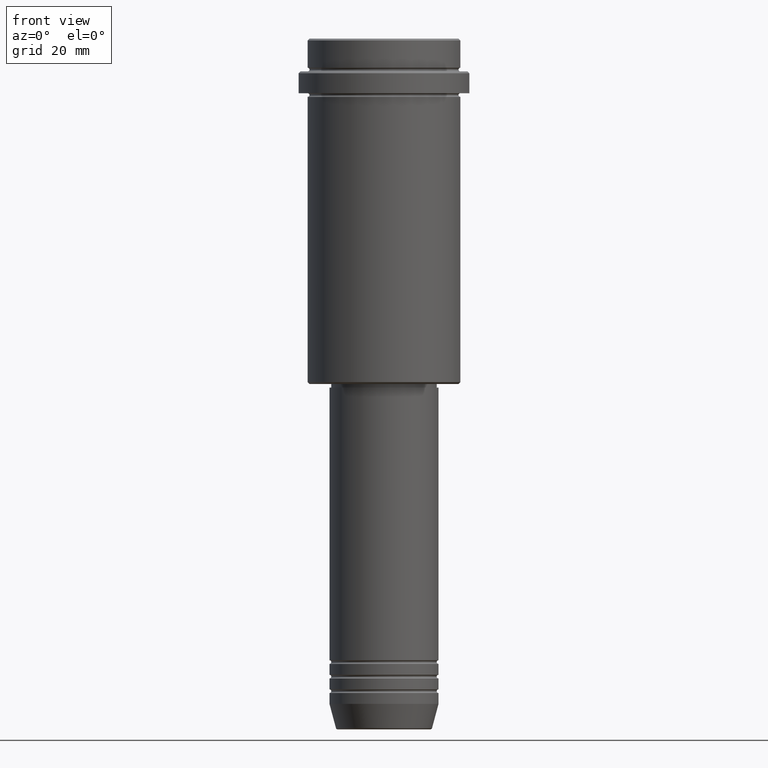
[diagram: clean part render]
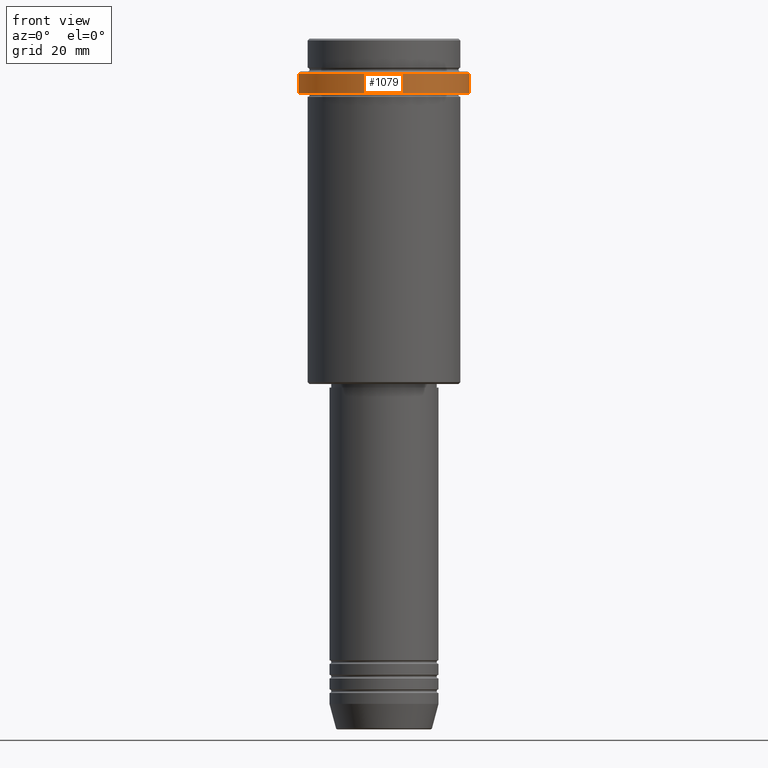
[diagram: same view with one face highlighted and labeled with its STEP entity id]
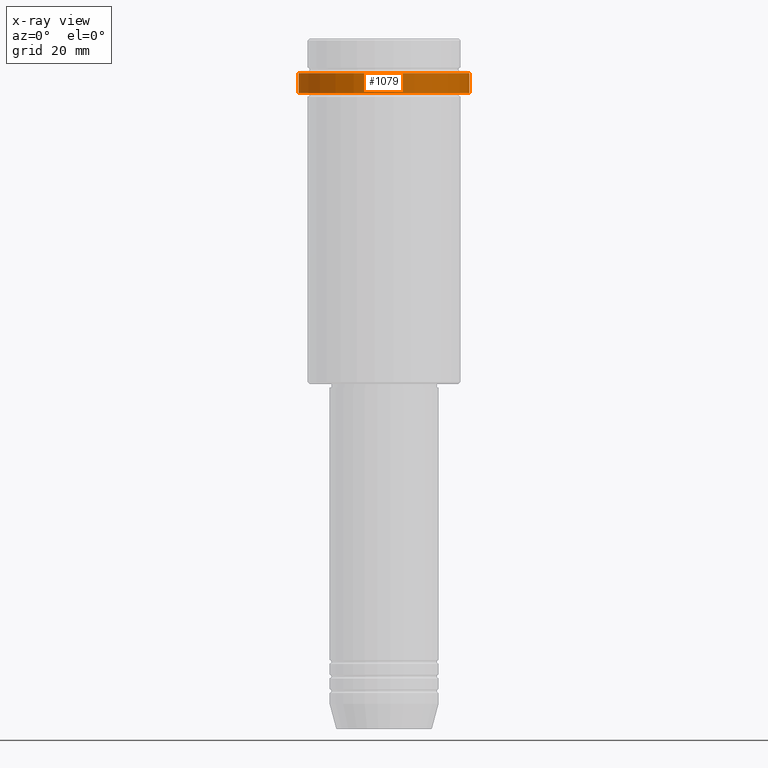
[diagram: x-ray of the same camera — body ghosted, the highlighted face saturated]
A machine part, front view. The second image highlights one B-rep face of the part: STEP entity #1079.
The next image is the same camera in x-ray: the body ghosted, the highlighted face saturated — about 0% of this face is hidden behind the body in this view.
In plain terms, the highlighted cylindrical surface (partial cylindrical patch) has radius 23.5 mm, axis along (-0, -0, 1).
Its self-contained STEP definition (entity closure, byte-faithful):
#17 = DIRECTION ( 'NONE',  ( -0.000000000000000000, -0.000000000000000000, 1.000000000000000000 ) ) ;
#21 = CARTESIAN_POINT ( 'NONE',  ( 23.50000000000000000, 0.000000000000000000, 0.000000000000000000 ) ) ;
#42 = CARTESIAN_POINT ( 'NONE',  ( 0.000000000000000000, 0.000000000000000000, -15.00000000000000000 ) ) ;
#56 = CIRCLE ( 'NONE', #729, 23.50000000000000000 ) ;
#150 = DIRECTION ( 'NONE',  ( -0.000000000000000000, -0.000000000000000000, 1.000000000000000000 ) ) ;
#163 = DIRECTION ( 'NONE',  ( -0.000000000000000000, -0.000000000000000000, 1.000000000000000000 ) ) ;
#198 = VERTEX_POINT ( 'NONE', #1050 ) ;
#251 = CARTESIAN_POINT ( 'NONE',  ( 0.000000000000000000, 0.000000000000000000, 0.000000000000000000 ) ) ;
#257 = CARTESIAN_POINT ( 'NONE',  ( 0.000000000000000000, 0.000000000000000000, -9.500000000000000000 ) ) ;
#289 = DIRECTION ( 'NONE',  ( 0.000000000000000000, 0.000000000000000000, -1.000000000000000000 ) ) ;
#317 = AXIS2_PLACEMENT_3D ( 'NONE', #42, #150, #1363 ) ;
#343 = EDGE_LOOP ( 'NONE', ( #1416, #1031, #1195, #749 ) ) ;
#398 = CARTESIAN_POINT ( 'NONE',  ( 23.50000000000000000, 0.000000000000000000, -9.500000000000000000 ) ) ;
#404 = VECTOR ( 'NONE', #17, 1000.000000000000000 ) ;
#431 = AXIS2_PLACEMENT_3D ( 'NONE', #251, #163, #1020 ) ;
#486 = EDGE_CURVE ( 'NONE', #198, #1073, #692, .T. ) ;
#488 = FACE_OUTER_BOUND ( 'NONE', #343, .T. ) ;
#510 = EDGE_CURVE ( 'NONE', #804, #777, #890, .T. ) ;
#579 = CARTESIAN_POINT ( 'NONE',  ( -23.50000000000000000, 2.877919977996280320E-15, 0.000000000000000000 ) ) ;
#623 = CARTESIAN_POINT ( 'NONE',  ( -23.50000000000000711, 2.877919977996281109E-15, -15.00000000000000000 ) ) ;
#681 = VECTOR ( 'NONE', #1015, 1000.000000000000000 ) ;
#692 = LINE ( 'NONE', #21, #404 ) ;
#729 = AXIS2_PLACEMENT_3D ( 'NONE', #257, #289, #1156 ) ;
#744 = CARTESIAN_POINT ( 'NONE',  ( -23.50000000000000000, 2.877919977996280320E-15, -9.500000000000000000 ) ) ;
#749 = ORIENTED_EDGE ( 'NONE', *, *, #1085, .T. ) ;
#777 = VERTEX_POINT ( 'NONE', #744 ) ;
#804 = VERTEX_POINT ( 'NONE', #623 ) ;
#890 = LINE ( 'NONE', #579, #681 ) ;
#1015 = DIRECTION ( 'NONE',  ( -0.000000000000000000, -0.000000000000000000, 1.000000000000000000 ) ) ;
#1020 = DIRECTION ( 'NONE',  ( 1.000000000000000000, 0.000000000000000000, 0.000000000000000000 ) ) ;
#1025 = EDGE_CURVE ( 'NONE', #804, #198, #1329, .T. ) ;
#1031 = ORIENTED_EDGE ( 'NONE', *, *, #1025, .T. ) ;
#1050 = CARTESIAN_POINT ( 'NONE',  ( 23.50000000000000355, 0.000000000000000000, -15.00000000000000000 ) ) ;
#1073 = VERTEX_POINT ( 'NONE', #398 ) ;
#1079 = ADVANCED_FACE ( 'NONE', ( #488 ), #1123, .T. ) ;
#1085 = EDGE_CURVE ( 'NONE', #1073, #777, #56, .T. ) ;
#1123 = CYLINDRICAL_SURFACE ( 'NONE', #431, 23.50000000000000000 ) ;
#1156 = DIRECTION ( 'NONE',  ( 1.000000000000000000, 0.000000000000000000, 0.000000000000000000 ) ) ;
#1195 = ORIENTED_EDGE ( 'NONE', *, *, #486, .T. ) ;
#1329 = CIRCLE ( 'NONE', #317, 23.50000000000000355 ) ;
#1363 = DIRECTION ( 'NONE',  ( 1.000000000000000000, 0.000000000000000000, 0.000000000000000000 ) ) ;
#1416 = ORIENTED_EDGE ( 'NONE', *, *, #510, .F. ) ;